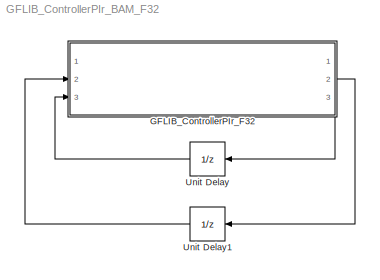
MODEL GFLIB_ControllerPIr_BAM_F32
KIND model
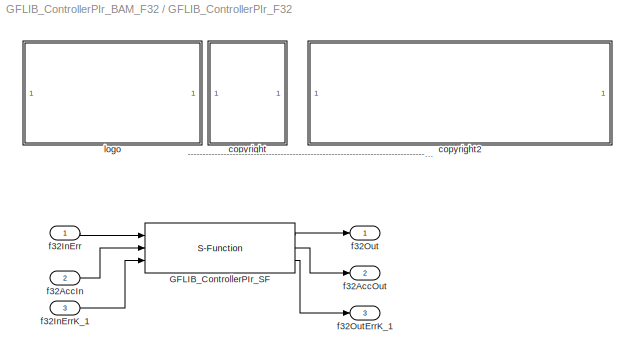
BLOCK [SubSystem] GFLIB_ControllerPIr_F32
  FunctionWithSeparateData = off
  MaskCallbackString = ||
  MaskDescription = Bit accurate model of reccurent form PI controller. All parameters as well as input and output are 32-bit integers except for u16NShift parameter which is 16-bit unsigned integer.
  MaskDisplay = color('black');\nport_label('input',1,'f32InErr');\nport_label('input',2,'f32AccIn');\nport_label('input',3,'f32InErrK_1');\nport_label('output',1,'f32Out');\nport_label('output',2,'f32AccOut');\nport_label('output',3,'f32OutErrK_1');\ncolor('black');\ndisp('GFLIB_ControllerPIr_F32');\ncolor('blue');\ntext(tX,tY, 'BAM', 'horizontalAlignment', 'center');
  MaskEnableString = on,on,on
  MaskHideContents = off
  MaskIconFrame = on
  MaskIconOpaque = on
  MaskIconRotate = none
  MaskIconUnits = pixels
  MaskInitialization = pos = get_param(gcb, 'Position');width = pos(3) - pos(1); height = pos(4) - pos(2);tX=width/2;tY=height*0.9;
  MaskPortRotate = default
  MaskPromptString = f32CC1|f32CC2|u16NShift
  MaskStyleString = edit,edit,edit
  MaskTabNameString = ,,
  MaskToolTipString = on,on,on
  MaskTunableValueString = on,on,on
  MaskType = GFLIB_ControllerPIr_F32
  MaskValueString = f32CC1|f32CC2|u16NShift
  MaskVarAliasString = ,,
  MaskVariables = f32CC1=@1;f32CC2=@2;u16NShift=@3;
  MaskVisibilityString = on,on,on
  MinAlgLoopOccurrences = off
  Opaque = off
  Ports = [3, 3]
  PropExecContextOutsideSubsystem = off
  RTWSystemCode = Auto
  RequestExecContextInheritance = off
BLOCK [S-Function] GFLIB_ControllerPIr_F32/GFLIB_ControllerPIr_SF
  EnableBusSupport = off
  FunctionName = GFLIB_ControllerPIr_SF_F32
  Parameters = f32CC1,f32CC2,u16NShift
  Ports = [3, 3]
BLOCK [SubSystem] GFLIB_ControllerPIr_F32/<copyright redacted>
  FunctionWithSeparateData = off
  MaskDisplay = text(10,90,'FILE:');text(10,75,'DESRIPTION:')text(10,60,'<copyright redacted>
  MaskHideContents = off
  MaskIconFrame = off
  MaskIconOpaque = on
  MaskIconRotate = none
  MaskIconUnits = pixels
  MaskPortRotate = default
  MinAlgLoopOccurrences = off
  Opaque = off
  Ports = []
  PropExecContextOutsideSubsystem = off
  RTWSystemCode = Auto
  RequestExecContextInheritance = off
BLOCK [SubSystem] GFLIB_ControllerPIr_F32/copyright2
  FunctionWithSeparateData = off
  MaskDisplay = text(10,90,'GFLIB_ControllerPIr_BAM_F32.mdl');text(10,75,'Recurrent form of a standard PI controller without implemented anti-windup.');text(10,60,'Freescale')text(10,45,'0.1');text(10,30,'20-Jan-2012');
  MaskHideContents = off
  MaskIconFrame = off
  MaskIconOpaque = on
  MaskIconRotate = none
  MaskIconUnits = pixels
  MaskPortRotate = default
  MinAlgLoopOccurrences = off
  Opaque = off
  Ports = []
  PropExecContextOutsideSubsystem = off
  RTWSystemCode = Auto
  RequestExecContextInheritance = off
BLOCK [Inport] GFLIB_ControllerPIr_F32/f32AccIn
  IconDisplay = Port number
  OutDataType = fixdt(1, 16)
  OutScaling = 2^0
  Port = 2
BLOCK [Outport] GFLIB_ControllerPIr_F32/f32AccOut
  IconDisplay = Port number
  OutDataType = fixdt(1, 16)
  OutScaling = 2^0
  Port = 2
BLOCK [Inport] GFLIB_ControllerPIr_F32/f32InErr
  IconDisplay = Port number
  OutDataType = fixdt(1, 16)
  OutScaling = 2^0
BLOCK [Inport] GFLIB_ControllerPIr_F32/f32InErrK_1
  IconDisplay = Port number
  OutDataType = fixdt(1, 16)
  OutScaling = 2^0
  Port = 3
BLOCK [Outport] GFLIB_ControllerPIr_F32/f32Out
  IconDisplay = Port number
  OutDataType = fixdt(1, 16)
  OutScaling = 2^0
BLOCK [Outport] GFLIB_ControllerPIr_F32/f32OutErrK_1
  IconDisplay = Port number
  OutDataType = fixdt(1, 16)
  OutScaling = 2^0
  Port = 3
BLOCK [SubSystem] GFLIB_ControllerPIr_F32/logo
  FunctionWithSeparateData = off
  MaskDisplay = image(imread('logo.jpg'))
  MaskHideContents = off
  MaskIconFrame = off
  MaskIconOpaque = on
  MaskIconRotate = none
  MaskIconUnits = autoscale
  MaskPortRotate = default
  MinAlgLoopOccurrences = off
  Opaque = off
  Ports = []
  PropExecContextOutsideSubsystem = off
  RTWSystemCode = Auto
  RequestExecContextInheritance = off
BLOCK [UnitDelay] Unit Delay
  SampleTime = -1
BLOCK [UnitDelay] Unit Delay1
  SampleTime = -1
ANNOTATION GFLIB_ControllerPIr_F32: ---------------------------------------------------------------------------------------------------------------------------------------------------------------------------------------------------
LINE GFLIB_ControllerPIr_F32/GFLIB_ControllerPIr_SF:1 -> GFLIB_ControllerPIr_F32/f32Out:1
LINE GFLIB_ControllerPIr_F32/GFLIB_ControllerPIr_SF:2 -> GFLIB_ControllerPIr_F32/f32AccOut:1
LINE GFLIB_ControllerPIr_F32/GFLIB_ControllerPIr_SF:3 -> GFLIB_ControllerPIr_F32/f32OutErrK_1:1
LINE GFLIB_ControllerPIr_F32/f32AccIn:1 -> GFLIB_ControllerPIr_F32/GFLIB_ControllerPIr_SF:2
LINE GFLIB_ControllerPIr_F32/f32InErr:1 -> GFLIB_ControllerPIr_F32/GFLIB_ControllerPIr_SF:1
LINE GFLIB_ControllerPIr_F32/f32InErrK_1:1 -> GFLIB_ControllerPIr_F32/GFLIB_ControllerPIr_SF:3
LINE GFLIB_ControllerPIr_F32:2 -> Unit Delay1:1
LINE GFLIB_ControllerPIr_F32:3 -> Unit Delay:1
LINE Unit Delay1:1 -> GFLIB_ControllerPIr_F32:2
LINE Unit Delay:1 -> GFLIB_ControllerPIr_F32:3
